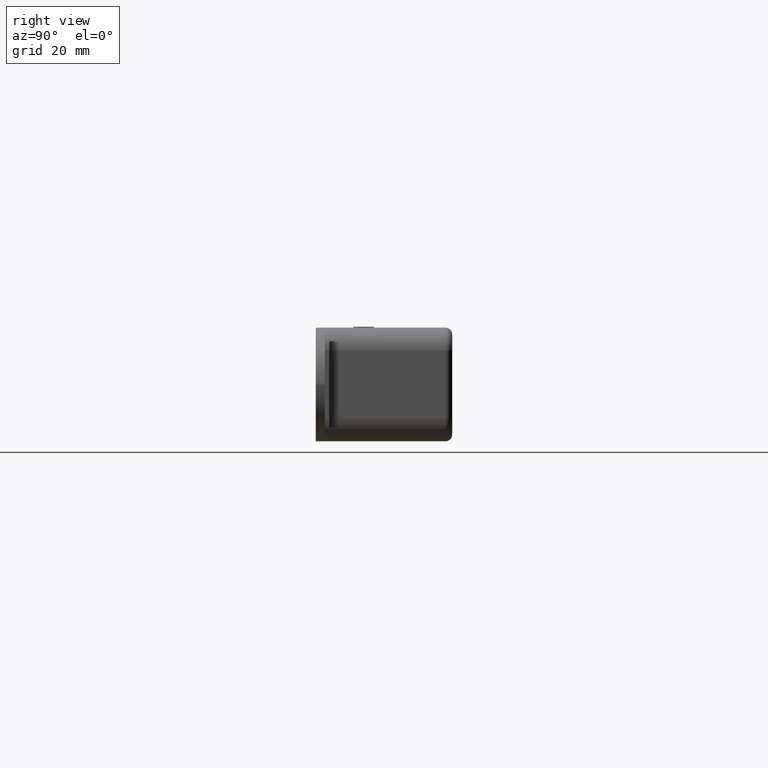
[diagram: clean part render]
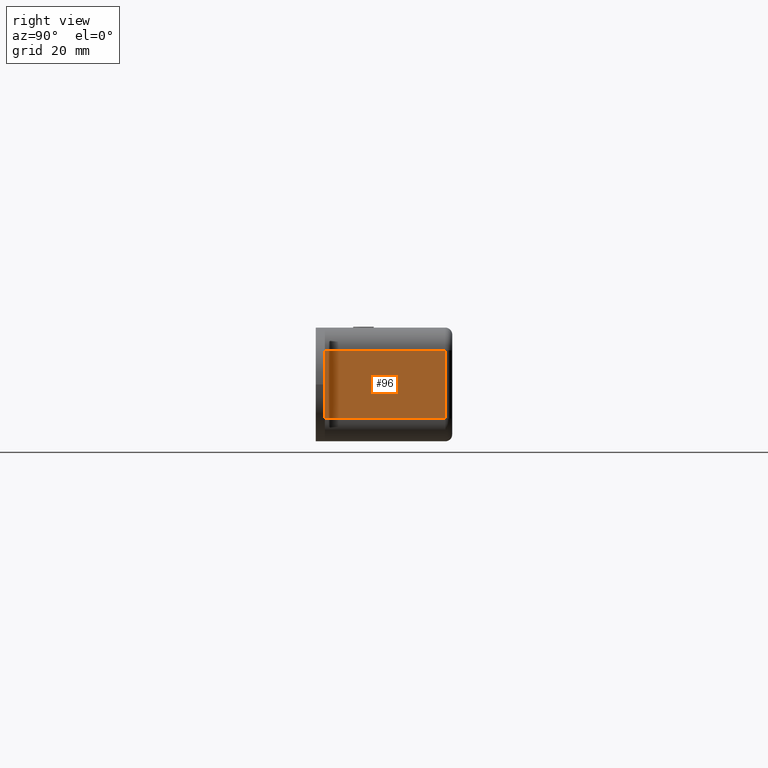
[diagram: same view with one face highlighted and labeled with its STEP entity id]
A machine part, right view. The second image highlights one B-rep face of the part: STEP entity #96.
In plain terms, the highlighted planar face has unit normal (1, -0, 0).
Its self-contained STEP definition (entity closure, byte-faithful):
#96 = ADVANCED_FACE( '', ( #815 ), #816, .T. );
#815 = FACE_OUTER_BOUND( '', #2123, .T. );
#816 = PLANE( '', #2124 );
#2123 = EDGE_LOOP( '', ( #3956, #3957, #3958, #3959 ) );
#2124 = AXIS2_PLACEMENT_3D( '', #3960, #3961, #3962 );
#3956 = ORIENTED_EDGE( '', *, *, #8789, .T. );
#3957 = ORIENTED_EDGE( '', *, *, #8790, .T. );
#3958 = ORIENTED_EDGE( '', *, *, #8791, .T. );
#3959 = ORIENTED_EDGE( '', *, *, #8792, .F. );
#3960 = CARTESIAN_POINT( '', ( 53.0000000000000, 1.99999999999999, -12.5000000000000 ) );
#3961 = DIRECTION( '', ( 1.00000000000000, -6.93889390390723E-017, 0.000000000000000 ) );
#3962 = DIRECTION( '', ( -6.93889390390723E-017, -1.00000000000000, 0.000000000000000 ) );
#8789 = EDGE_CURVE( '', #10873, #10874, #10875, .T. );
#8790 = EDGE_CURVE( '', #10874, #10876, #10877, .T. );
#8791 = EDGE_CURVE( '', #10876, #10878, #10879, .F. );
#8792 = EDGE_CURVE( '', #10873, #10878, #10880, .T. );
#10873 = VERTEX_POINT( '', #13966 );
#10874 = VERTEX_POINT( '', #13967 );
#10875 = LINE( '', #13968, #13969 );
#10876 = VERTEX_POINT( '', #13970 );
#10877 = LINE( '', #13971, #13972 );
#10878 = VERTEX_POINT( '', #13973 );
#10879 = LINE( '', #13974, #13975 );
#10880 = LINE( '', #13976, #13977 );
#13966 = CARTESIAN_POINT( '', ( 53.0000000000000, 2.00000000000000, -7.50000000000000 ) );
#13967 = CARTESIAN_POINT( '', ( 53.0000000000000, 28.5000000000000, -7.50000000000000 ) );
#13968 = CARTESIAN_POINT( '', ( 53.0000000000000, 1.99999999999999, -7.50000000000000 ) );
#13969 = VECTOR( '', #16879, 1000.00000000000 );
#13970 = CARTESIAN_POINT( '', ( 53.0000000000000, 28.5000000000000, 7.50000000000000 ) );
#13971 = CARTESIAN_POINT( '', ( 53.0000000000000, 28.5000000000000, -12.5000000000000 ) );
#13972 = VECTOR( '', #16880, 1000.00000000000 );
#13973 = CARTESIAN_POINT( '', ( 53.0000000000000, 2.00000000000000, 7.49999999999999 ) );
#13974 = CARTESIAN_POINT( '', ( 53.0000000000000, 2.00000000000000, 7.50000000000000 ) );
#13975 = VECTOR( '', #16881, 1000.00000000000 );
#13976 = CARTESIAN_POINT( '', ( 53.0000000000000, 2.00000000000000, -12.5000000000000 ) );
#13977 = VECTOR( '', #16882, 1000.00000000000 );
#16879 = DIRECTION( '', ( 6.93889390390723E-017, 1.00000000000000, 0.000000000000000 ) );
#16880 = DIRECTION( '', ( 0.000000000000000, 0.000000000000000, 1.00000000000000 ) );
#16881 = DIRECTION( '', ( 6.93889390390723E-017, 1.00000000000000, 0.000000000000000 ) );
#16882 = DIRECTION( '', ( 0.000000000000000, 0.000000000000000, 1.00000000000000 ) );